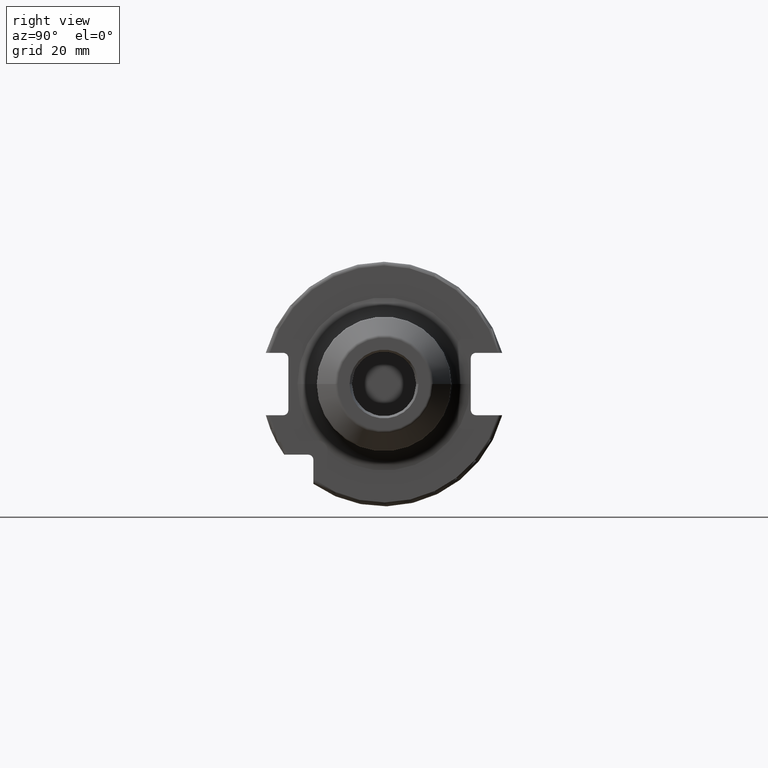
[diagram: clean part render]
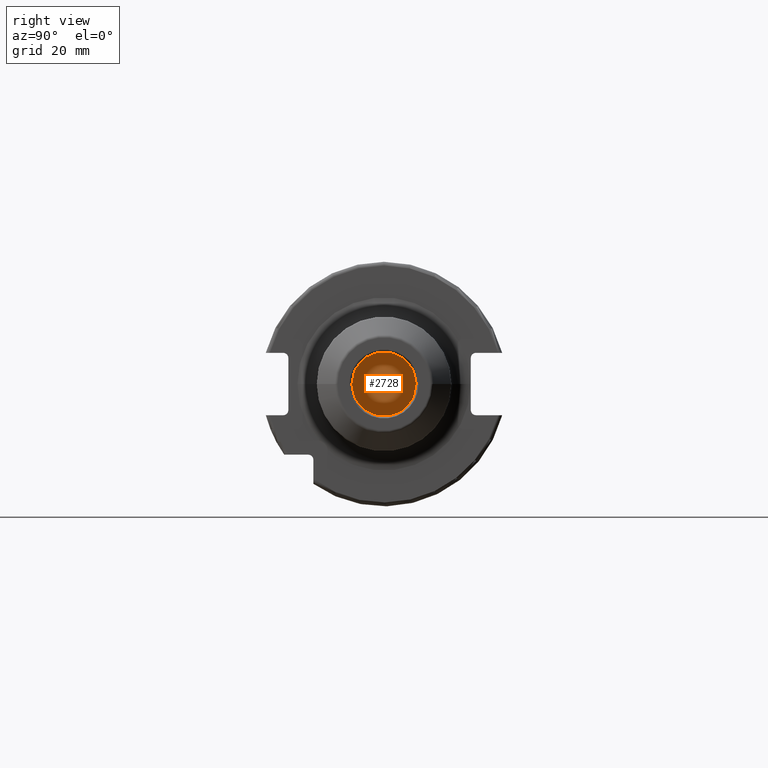
[diagram: same view with one face highlighted and labeled with its STEP entity id]
A machine part, right view. The second image highlights one B-rep face of the part: STEP entity #2728.
In plain terms, the highlighted planar face has unit normal (1, 0, 0).
Its self-contained STEP definition (entity closure, byte-faithful):
#1051=CARTESIAN_POINT('',(3.28E1,0.E0,0.E0));
#1052=DIRECTION('',(-1.E0,0.E0,0.E0));
#1053=DIRECTION('',(0.E0,1.E0,0.E0));
#1054=AXIS2_PLACEMENT_3D('',#1051,#1052,#1053);
#1056=CARTESIAN_POINT('',(3.28E1,0.E0,0.E0));
#1057=DIRECTION('',(1.E0,0.E0,0.E0));
#1058=DIRECTION('',(0.E0,1.E0,0.E0));
#1059=AXIS2_PLACEMENT_3D('',#1056,#1057,#1058);
#1537=CARTESIAN_POINT('',(3.28E1,8.36E0,0.E0));
#1539=VERTEX_POINT('',#1537);
#1541=CARTESIAN_POINT('',(3.28E1,-8.36E0,0.E0));
#1543=VERTEX_POINT('',#1541);
#2719=CARTESIAN_POINT('',(3.28E1,0.E0,0.E0));
#2720=DIRECTION('',(1.E0,0.E0,0.E0));
#2721=DIRECTION('',(0.E0,-1.E0,0.E0));
#2722=AXIS2_PLACEMENT_3D('',#2719,#2720,#2721);
#2723=PLANE('',#2722);
#2724=ORIENTED_EDGE('',*,*,#2701,.T.);
#2725=ORIENTED_EDGE('',*,*,#2712,.F.);
#2726=EDGE_LOOP('',(#2724,#2725));
#2727=FACE_OUTER_BOUND('',#2726,.F.);
#2728=ADVANCED_FACE('',(#2727),#2723,.T.);
#1055=CIRCLE('',#1054,8.36E0);
#1060=CIRCLE('',#1059,8.36E0);
#2701=EDGE_CURVE('',#1539,#1543,#1055,.T.);
#2712=EDGE_CURVE('',#1539,#1543,#1060,.T.);